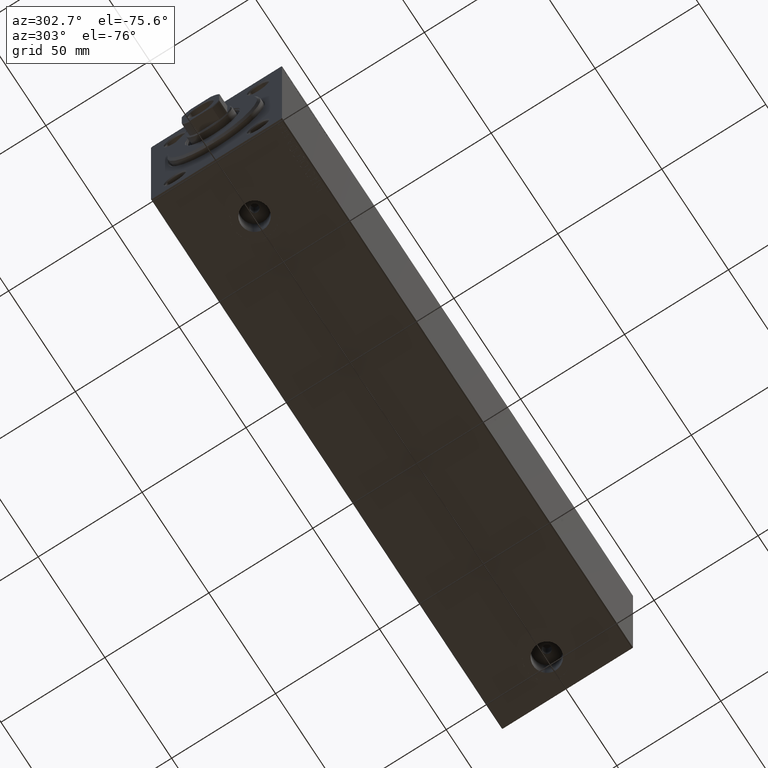
[diagram: clean part render]
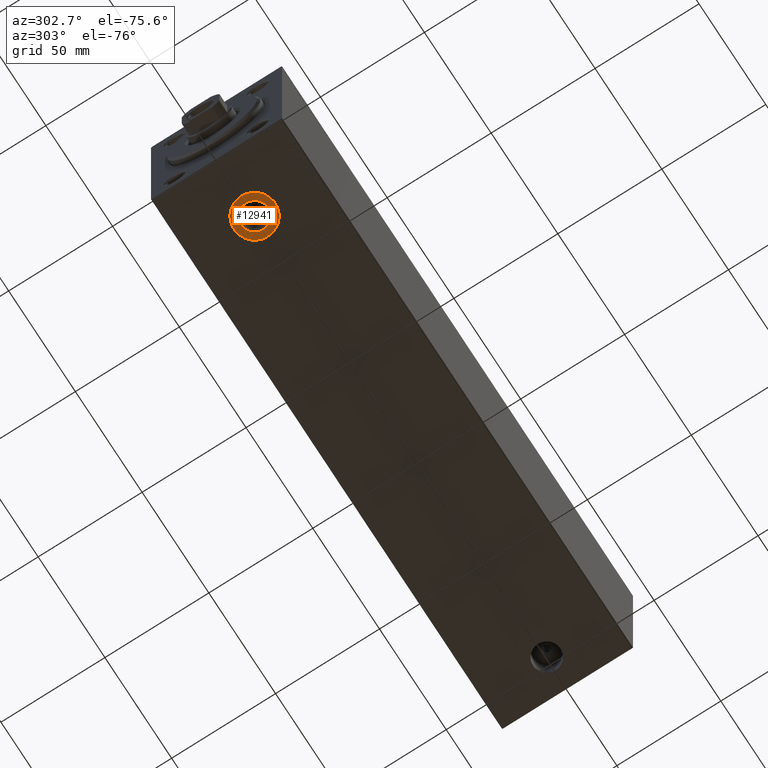
[diagram: same view with one face highlighted and labeled with its STEP entity id]
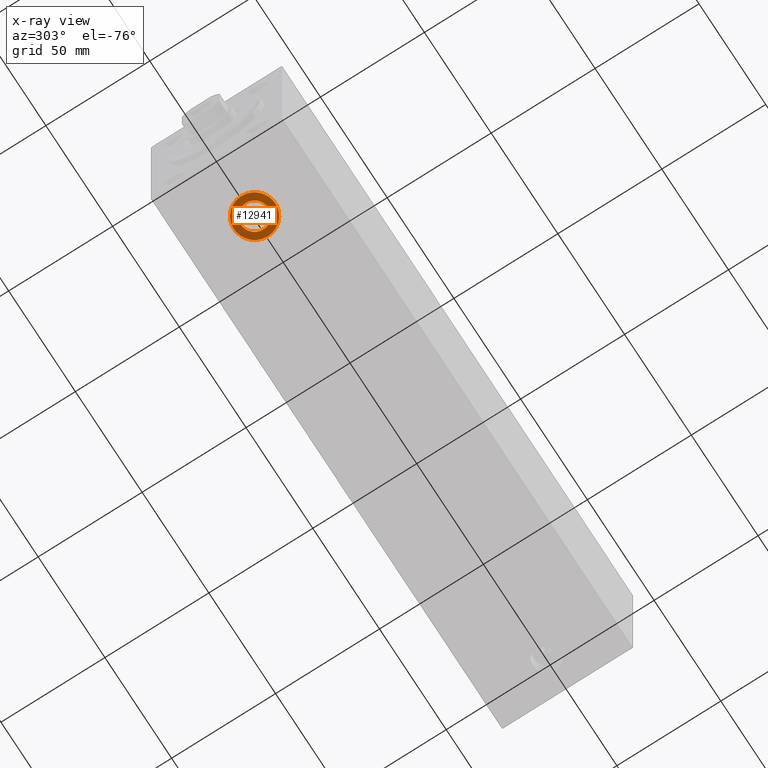
[diagram: x-ray of the same camera — body ghosted, the highlighted face saturated]
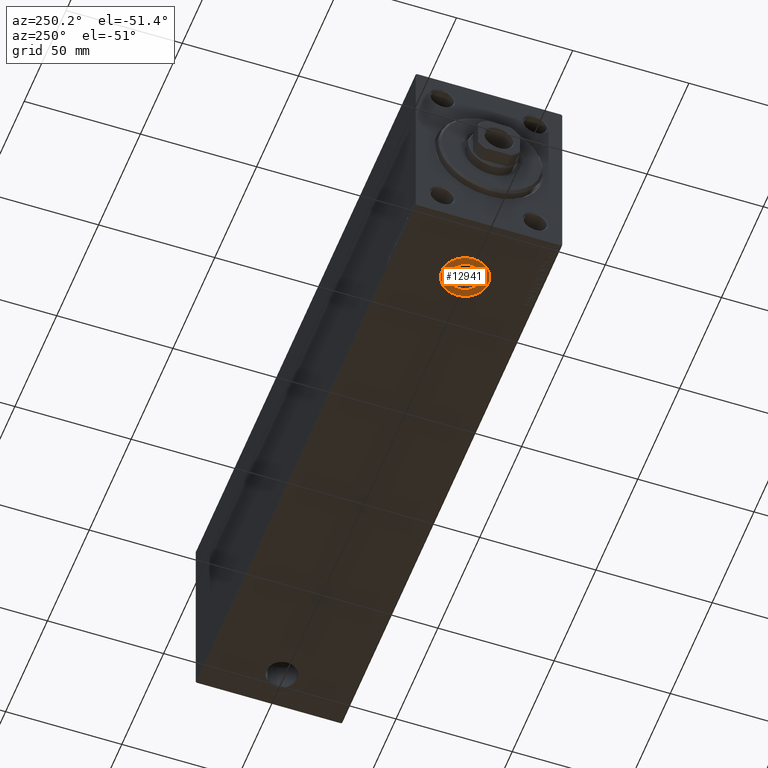
[diagram: same view with one face highlighted and labeled with its STEP entity id]
A machine part, auxiliary view. The second image highlights one B-rep face of the part: STEP entity #12941.
The next image is the same camera in x-ray: the body ghosted, the highlighted face saturated — about 0% of this face is hidden behind the body in this view.
A second angle (auxiliary view) of the same face is appended — the face is thin or edge-on in the first view.
In plain terms, the highlighted planar face has unit normal (0, 0, -1).
Its self-contained STEP definition (entity closure, byte-faithful):
#809 = EDGE_CURVE ( 'NONE', #28589, #26392, #21480, .T. ) ;
#862 = DIRECTION ( 'NONE',  ( 0.000000000000000000, 0.000000000000000000, -1.000000000000000000 ) ) ;
#1180 = AXIS2_PLACEMENT_3D ( 'NONE', #34654, #42477, #24755 ) ;
#1213 = FACE_BOUND ( 'NONE', #6298, .T. ) ;
#4010 = ORIENTED_EDGE ( 'NONE', *, *, #32303, .T. ) ;
#5005 = ORIENTED_EDGE ( 'NONE', *, *, #809, .F. ) ;
#5902 = VERTEX_POINT ( 'NONE', #20016 ) ;
#6298 = EDGE_LOOP ( 'NONE', ( #17305, #5005 ) ) ;
#10478 = CARTESIAN_POINT ( 'NONE',  ( 38.50000000000000000, -2.482056851579446379E-15, -42.40000000000000568 ) ) ;
#10711 = VERTEX_POINT ( 'NONE', #10478 ) ;
#11180 = AXIS2_PLACEMENT_3D ( 'NONE', #26831, #40868, #30058 ) ;
#11251 = CARTESIAN_POINT ( 'NONE',  ( 28.50000000000000000, -3.706703650726799044E-15, -42.40000000000000568 ) ) ;
#12941 = ADVANCED_FACE ( 'NONE', ( #1213, #15279 ), #29337, .T. ) ;
#13324 = DIRECTION ( 'NONE',  ( 0.000000000000000000, 0.000000000000000000, -1.000000000000000000 ) ) ;
#15279 = FACE_OUTER_BOUND ( 'NONE', #26473, .T. ) ;
#15918 = EDGE_CURVE ( 'NONE', #26392, #28589, #36505, .T. ) ;
#16607 = CARTESIAN_POINT ( 'NONE',  ( 35.07999999999999829, -2.900886056887840397E-15, -42.40000000000000568 ) ) ;
#17305 = ORIENTED_EDGE ( 'NONE', *, *, #15918, .F. ) ;
#17567 = CIRCLE ( 'NONE', #28603, 9.999999999999998224 ) ;
#17852 = CARTESIAN_POINT ( 'NONE',  ( 0.000000000000000000, 0.000000000000000000, -42.40000000000000568 ) ) ;
#18848 = DIRECTION ( 'NONE',  ( -1.000000000000000000, 0.000000000000000000, 0.000000000000000000 ) ) ;
#20016 = CARTESIAN_POINT ( 'NONE',  ( 18.50000000000000355, -3.706703650726799044E-15, -42.40000000000000568 ) ) ;
#20487 = DIRECTION ( 'NONE',  ( -1.000000000000000000, 0.000000000000000000, 0.000000000000000000 ) ) ;
#21480 = CIRCLE ( 'NONE', #11180, 6.580000000000002736 ) ;
#21928 = CIRCLE ( 'NONE', #24152, 9.999999999999998224 ) ;
#24152 = AXIS2_PLACEMENT_3D ( 'NONE', #44891, #13324, #20487 ) ;
#24755 = DIRECTION ( 'NONE',  ( -1.000000000000000000, 0.000000000000000000, 0.000000000000000000 ) ) ;
#26110 = CARTESIAN_POINT ( 'NONE',  ( 21.91999999999999815, -3.706703650726799044E-15, -42.40000000000000568 ) ) ;
#26392 = VERTEX_POINT ( 'NONE', #26110 ) ;
#26473 = EDGE_LOOP ( 'NONE', ( #4010, #31441 ) ) ;
#26831 = CARTESIAN_POINT ( 'NONE',  ( 28.50000000000000000, -3.706703650726799044E-15, -42.40000000000000568 ) ) ;
#28589 = VERTEX_POINT ( 'NONE', #16607 ) ;
#28603 = AXIS2_PLACEMENT_3D ( 'NONE', #11251, #862, #18848 ) ;
#29337 = PLANE ( 'NONE',  #33495 ) ;
#29797 = EDGE_CURVE ( 'NONE', #10711, #5902, #17567, .T. ) ;
#30058 = DIRECTION ( 'NONE',  ( -1.000000000000000000, 0.000000000000000000, 0.000000000000000000 ) ) ;
#31441 = ORIENTED_EDGE ( 'NONE', *, *, #29797, .T. ) ;
#31895 = DIRECTION ( 'NONE',  ( -1.000000000000000000, 0.000000000000000000, -0.000000000000000000 ) ) ;
#32303 = EDGE_CURVE ( 'NONE', #5902, #10711, #21928, .T. ) ;
#33495 = AXIS2_PLACEMENT_3D ( 'NONE', #17852, #43384, #31895 ) ;
#34654 = CARTESIAN_POINT ( 'NONE',  ( 28.50000000000000000, -3.706703650726799044E-15, -42.40000000000000568 ) ) ;
#36505 = CIRCLE ( 'NONE', #1180, 6.580000000000002736 ) ;
#40868 = DIRECTION ( 'NONE',  ( 0.000000000000000000, 0.000000000000000000, -1.000000000000000000 ) ) ;
#42477 = DIRECTION ( 'NONE',  ( 0.000000000000000000, 0.000000000000000000, -1.000000000000000000 ) ) ;
#43384 = DIRECTION ( 'NONE',  ( 0.000000000000000000, 0.000000000000000000, -1.000000000000000000 ) ) ;
#44891 = CARTESIAN_POINT ( 'NONE',  ( 28.50000000000000000, -3.706703650726799044E-15, -42.40000000000000568 ) ) ;